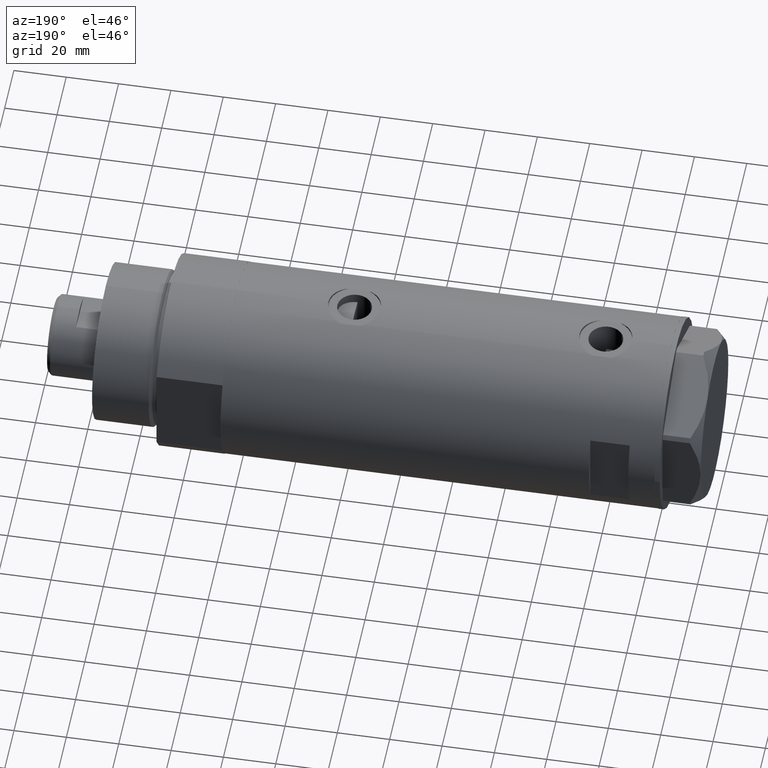
[diagram: clean part render]
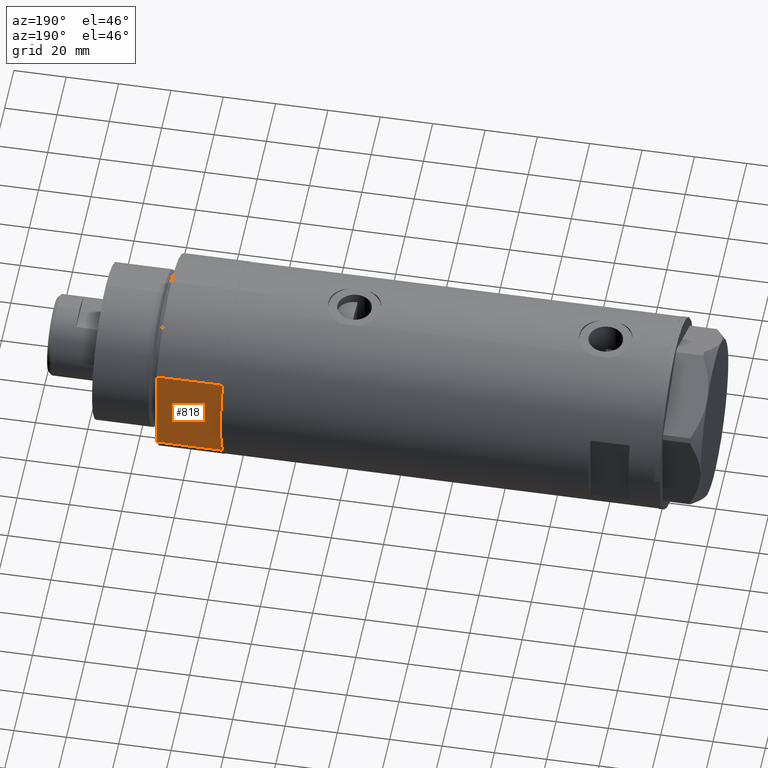
[diagram: same view with one face highlighted and labeled with its STEP entity id]
A machine part, auxiliary view. The second image highlights one B-rep face of the part: STEP entity #818.
In plain terms, the highlighted planar face has unit normal (0, -1, -0).
Its self-contained STEP definition (entity closure, byte-faithful):
#115 = ORIENTED_EDGE ( 'NONE', *, *, #1227, .F. ) ;
#153 = EDGE_CURVE ( 'NONE', #665, #2571, #3527, .T. ) ;
#184 = DIRECTION ( 'NONE',  ( 0.000000000000000000, -1.000000000000000000, 0.000000000000000000 ) ) ;
#206 = VERTEX_POINT ( 'NONE', #3890 ) ;
#427 = CARTESIAN_POINT ( 'NONE',  ( -17.55704986607943141, 32.00000000000000000, 0.000000000000000000 ) ) ;
#442 = CARTESIAN_POINT ( 'NONE',  ( -17.55704986607943141, 32.00000000000000000, 25.19999999999999929 ) ) ;
#479 = CARTESIAN_POINT ( 'NONE',  ( 17.55704986607943496, 32.00000000000000000, 25.19999999999999929 ) ) ;
#541 = LINE ( 'NONE', #3016, #2149 ) ;
#606 = CARTESIAN_POINT ( 'NONE',  ( -17.55704986607943141, 32.00000000000000000, 0.000000000000000000 ) ) ;
#665 = VERTEX_POINT ( 'NONE', #3561 ) ;
#818 = ADVANCED_FACE ( 'NONE', ( #2347 ), #4120, .F. ) ;
#891 = DIRECTION ( 'NONE',  ( 1.000000000000000000, 0.000000000000000000, 0.000000000000000000 ) ) ;
#969 = DIRECTION ( 'NONE',  ( 1.000000000000000000, 0.000000000000000000, 0.000000000000000000 ) ) ;
#1008 = CARTESIAN_POINT ( 'NONE',  ( 0.000000000000000000, 32.00000000000000000, 0.000000000000000000 ) ) ;
#1083 = EDGE_LOOP ( 'NONE', ( #1316, #115, #3124, #2967, #1296 ) ) ;
#1120 = VECTOR ( 'NONE', #2116, 1000.000000000000000 ) ;
#1227 = EDGE_CURVE ( 'NONE', #206, #2687, #4230, .T. ) ;
#1296 = ORIENTED_EDGE ( 'NONE', *, *, #153, .T. ) ;
#1316 = ORIENTED_EDGE ( 'NONE', *, *, #1748, .T. ) ;
#1615 = VECTOR ( 'NONE', #3076, 1000.000000000000000 ) ;
#1748 = EDGE_CURVE ( 'NONE', #2571, #2687, #3628, .T. ) ;
#1765 = CARTESIAN_POINT ( 'NONE',  ( -17.55704986607943496, 32.00000000000000000, 25.19999999999999929 ) ) ;
#1899 = AXIS2_PLACEMENT_3D ( 'NONE', #606, #184, #4066 ) ;
#2116 = DIRECTION ( 'NONE',  ( -0.000000000000000000, -0.000000000000000000, 1.000000000000000000 ) ) ;
#2149 = VECTOR ( 'NONE', #891, 1000.000000000000000 ) ;
#2347 = FACE_OUTER_BOUND ( 'NONE', #1083, .T. ) ;
#2571 = VERTEX_POINT ( 'NONE', #1765 ) ;
#2597 = VERTEX_POINT ( 'NONE', #1008 ) ;
#2687 = VERTEX_POINT ( 'NONE', #479 ) ;
#2843 = DIRECTION ( 'NONE',  ( 1.000000000000000000, 0.000000000000000000, 0.000000000000000000 ) ) ;
#2898 = EDGE_CURVE ( 'NONE', #2597, #206, #4060, .T. ) ;
#2967 = ORIENTED_EDGE ( 'NONE', *, *, #3658, .F. ) ;
#3016 = CARTESIAN_POINT ( 'NONE',  ( -17.55704986607943141, 32.00000000000000000, 0.000000000000000000 ) ) ;
#3076 = DIRECTION ( 'NONE',  ( -0.000000000000000000, -0.000000000000000000, 1.000000000000000000 ) ) ;
#3124 = ORIENTED_EDGE ( 'NONE', *, *, #2898, .F. ) ;
#3150 = VECTOR ( 'NONE', #2843, 1000.000000000000000 ) ;
#3527 = LINE ( 'NONE', #427, #1615 ) ;
#3561 = CARTESIAN_POINT ( 'NONE',  ( -17.55704986607943141, 32.00000000000000000, 0.000000000000000000 ) ) ;
#3589 = VECTOR ( 'NONE', #969, 1000.000000000000000 ) ;
#3628 = LINE ( 'NONE', #442, #3150 ) ;
#3658 = EDGE_CURVE ( 'NONE', #665, #2597, #541, .T. ) ;
#3890 = CARTESIAN_POINT ( 'NONE',  ( 17.55704986607943496, 32.00000000000000000, 0.000000000000000000 ) ) ;
#4060 = LINE ( 'NONE', #4432, #3589 ) ;
#4066 = DIRECTION ( 'NONE',  ( 0.000000000000000000, -0.000000000000000000, -1.000000000000000000 ) ) ;
#4120 = PLANE ( 'NONE',  #1899 ) ;
#4210 = CARTESIAN_POINT ( 'NONE',  ( 17.55704986607943141, 32.00000000000000000, 0.000000000000000000 ) ) ;
#4230 = LINE ( 'NONE', #4210, #1120 ) ;
#4432 = CARTESIAN_POINT ( 'NONE',  ( -17.55704986607943141, 32.00000000000000000, 0.000000000000000000 ) ) ;